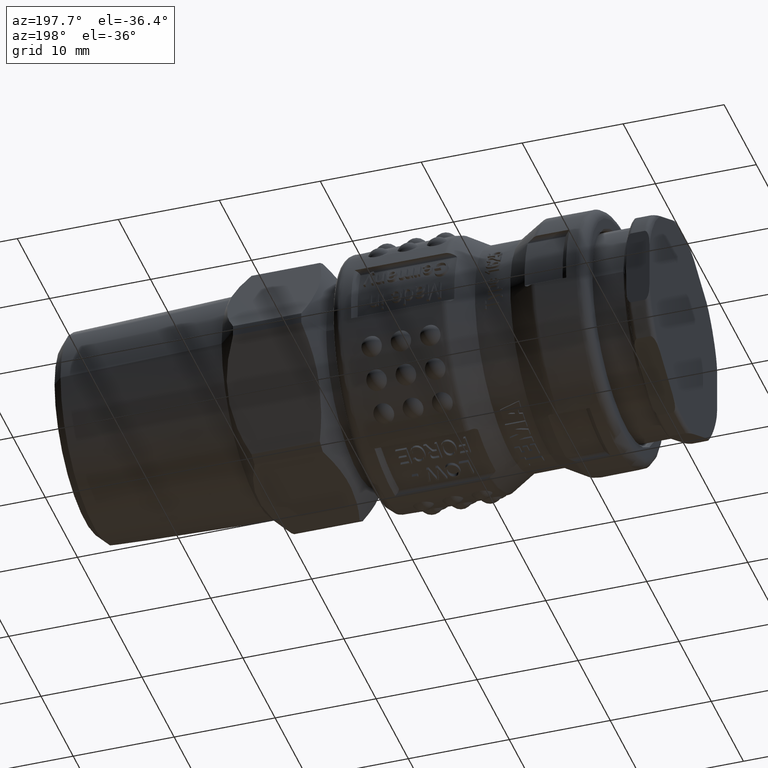
[diagram: clean part render]
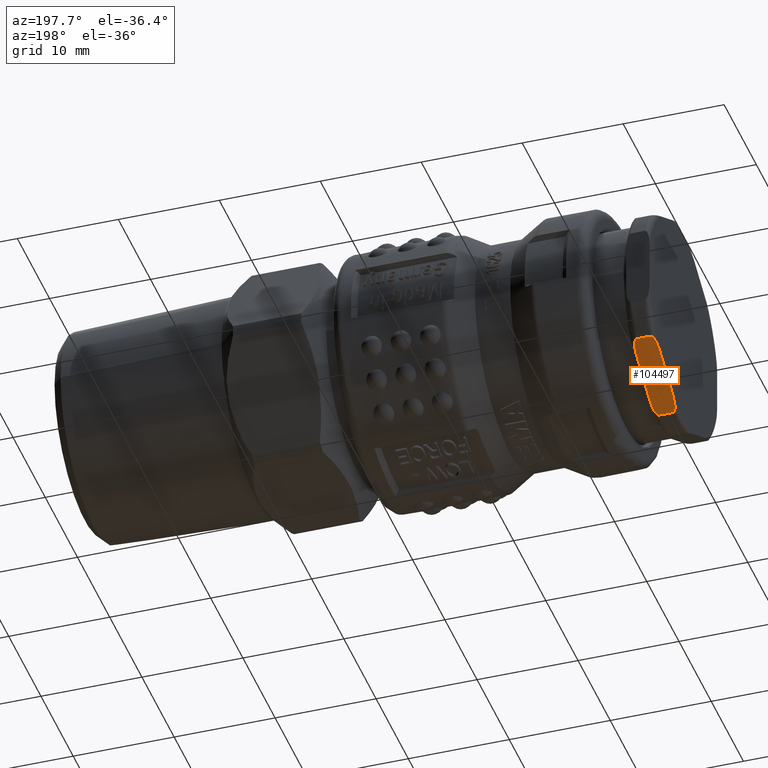
[diagram: same view with one face highlighted and labeled with its STEP entity id]
A machine part, auxiliary view. The second image highlights one B-rep face of the part: STEP entity #104497.
In plain terms, the highlighted planar face has unit normal (0, -0.5, 0.866).
Its self-contained STEP definition (entity closure, byte-faithful):
#104366=CARTESIAN_POINT('',(2.537318455405742,5.249999999999994,-9.093266739736611));
#104367=DIRECTION('',(0.0,-0.499999999999999,0.866025403784439));
#104368=DIRECTION('',(0.0,-0.866025403784439,-0.499999999999999));
#104369=AXIS2_PLACEMENT_3D('',#104366,#104367,#104368);
#104370=PLANE('',#104369);
#104371=CARTESIAN_POINT('',(0.0,7.246089927833896,-7.940823682575009));
#104372=VERTEX_POINT('',#104371);
#104373=CARTESIAN_POINT('',(0.0,3.253910072166088,-10.245709796898215));
#104374=VERTEX_POINT('',#104373);
#104375=CARTESIAN_POINT('',(-5.551115E-016,7.246089927833896,-7.940823682575011));
#104376=DIRECTION('',(0.0,-0.866025403784439,-0.499999999999999));
#104377=VECTOR('',#104376,4.609772228646418);
#104378=LINE('',#104375,#104377);
#104379=EDGE_CURVE('',#104372,#104374,#104378,.T.);
#104380=ORIENTED_EDGE('',*,*,#104379,.F.);
#104381=CARTESIAN_POINT('',(0.499999999999998,8.747767144908295,-7.073829937061179));
#104382=VERTEX_POINT('',#104381);
#104383=CARTESIAN_POINT('',(0.500000000000002,8.747767144908295,-7.073829937061179));
#104384=CARTESIAN_POINT('',(0.481121643181689,8.747767144908295,-7.073829937061179));
#104385=CARTESIAN_POINT('',(0.458793051211935,8.744453652771821,-7.075742982638130));
#104386=CARTESIAN_POINT('',(0.419627389315129,8.733179611163584,-7.082252053595502));
#104387=CARTESIAN_POINT('',(0.395950711829969,8.722171444050003,-7.088607621841811));
#104388=CARTESIAN_POINT('',(0.316967568714504,8.673656333029786,-7.116617834249097));
#104389=CARTESIAN_POINT('',(0.265911333462271,8.610178992294518,-7.153266494010046));
#104390=CARTESIAN_POINT('',(0.115388660381504,8.366283622324060,-7.294079551516592));
#104391=CARTESIAN_POINT('',(0.069277545910452,8.144360706525648,-7.422206806692152));
#104392=CARTESIAN_POINT('',(0.007777012194475,7.690678814278845,-7.684140169307302));
#104393=CARTESIAN_POINT('',(-7.999750E-016,7.458170150810655,-7.818379108749584));
#104394=CARTESIAN_POINT('',(-8.543513E-016,7.246089927833888,-7.940823682575014));
#104395=B_SPLINE_CURVE_WITH_KNOTS('',3,(#104383,#104384,#104385,#104386,#104387,#104388,#104389,#104390,#104391,#104392,#104393,#104394),.UNSPECIFIED.,.F.,.U.,(4,2,2,2,2,4),(-0.397866170477986,-0.392202663432492,-0.385484413810797,-0.363152771171895,-0.289686026876636,-0.216219282581377),.UNSPECIFIED.);
#104396=EDGE_CURVE('',#104382,#104372,#104395,.T.);
#104397=ORIENTED_EDGE('',*,*,#104396,.F.);
#104398=CARTESIAN_POINT('',(1.799999999999997,8.747767144908295,-7.073829937061179));
#104399=VERTEX_POINT('',#104398);
#104400=CARTESIAN_POINT('',(1.799999999999997,8.747767144908295,-7.073829937061179));
#104401=DIRECTION('',(-1.0,0.0,0.0));
#104402=VECTOR('',#104401,1.299999999999999);
#104403=LINE('',#104400,#104402);
#104404=EDGE_CURVE('',#104399,#104382,#104403,.T.);
#104405=ORIENTED_EDGE('',*,*,#104404,.F.);
#104406=CARTESIAN_POINT('',(2.299999999999995,7.246089927833905,-7.940823682575005));
#104407=VERTEX_POINT('',#104406);
#104408=CARTESIAN_POINT('',(2.299999999999997,7.246089927833897,-7.940823682575009));
#104409=CARTESIAN_POINT('',(2.299999999999997,7.458170150810663,-7.818379108749578));
#104410=CARTESIAN_POINT('',(2.292222987805521,7.690678814278853,-7.684140169307298));
#104411=CARTESIAN_POINT('',(2.230722454089543,8.144360706525653,-7.422206806692151));
#104412=CARTESIAN_POINT('',(2.184611339618494,8.366283622324062,-7.294079551516592));
#104413=CARTESIAN_POINT('',(2.034088666537726,8.610178992294518,-7.153266494010046));
#104414=CARTESIAN_POINT('',(1.983032431285494,8.673656333029786,-7.116617834249097));
#104415=CARTESIAN_POINT('',(1.904049288170030,8.722171444050002,-7.088607621841811));
#104416=CARTESIAN_POINT('',(1.880372610684868,8.733179611163580,-7.082252053595504));
#104417=CARTESIAN_POINT('',(1.841206948788063,8.744453652771817,-7.075742982638133));
#104418=CARTESIAN_POINT('',(1.818878356818310,8.747767144908295,-7.073829937061179));
#104419=CARTESIAN_POINT('',(1.799999999999997,8.747767144908295,-7.073829937061179));
#104420=B_SPLINE_CURVE_WITH_KNOTS('',3,(#104408,#104409,#104410,#104411,#104412,#104413,#104414,#104415,#104416,#104417,#104418,#104419),.UNSPECIFIED.,.F.,.U.,(4,2,2,2,2,4),(1.011951623537349,1.085418367832607,1.158885112127866,1.181216754766768,1.187935004388462,1.193598511433956),.UNSPECIFIED.);
#104421=EDGE_CURVE('',#104407,#104399,#104420,.T.);
#104422=ORIENTED_EDGE('',*,*,#104421,.F.);
#104423=CARTESIAN_POINT('',(2.300000000000000,6.138467782195813,-8.580309626519547));
#104424=VERTEX_POINT('',#104423);
#104425=CARTESIAN_POINT('',(2.299999999999998,6.138467782195813,-8.580309626519547));
#104426=DIRECTION('',(0.0,0.866025403784439,0.499999999999999));
#104427=VECTOR('',#104426,1.278971887889087);
#104428=LINE('',#104425,#104427);
#104429=EDGE_CURVE('',#104424,#104407,#104428,.T.);
#104430=ORIENTED_EDGE('',*,*,#104429,.F.);
#104431=CARTESIAN_POINT('',(2.300000000000000,4.361532217804172,-9.606223852953677));
#104432=VERTEX_POINT('',#104431);
#104433=CARTESIAN_POINT('',(2.299999999999998,4.361532217804154,-9.606223852953688));
#104434=CARTESIAN_POINT('',(2.299999999999998,4.443163184411790,-9.559094192408560));
#104435=CARTESIAN_POINT('',(2.300378094133238,4.541119797077845,-9.502538915716910));
#104436=CARTESIAN_POINT('',(2.301762414152041,4.818765312358481,-9.342240202730341));
#104437=CARTESIAN_POINT('',(2.303137303340309,5.053982863045070,-9.206437286523318));
#104438=CARTESIAN_POINT('',(2.303137303340309,5.249999999999994,-9.093266739736613));
#104439=CARTESIAN_POINT('',(2.303137303340310,5.446017136954917,-8.980096192949908));
#104440=CARTESIAN_POINT('',(2.301762414152041,5.681234687641505,-8.844293276742882));
#104441=CARTESIAN_POINT('',(2.300378094133237,5.958880202922140,-8.683994563756315));
#104442=CARTESIAN_POINT('',(2.299999999999998,6.056836815588195,-8.627439287064663));
#104443=CARTESIAN_POINT('',(2.299999999999998,6.138467782195831,-8.580309626519536));
#104444=B_SPLINE_CURVE_WITH_KNOTS('',3,(#104433,#104434,#104435,#104436,#104437,#104438,#104439,#104440,#104441,#104442,#104443),.UNSPECIFIED.,.F.,.U.,(4,2,3,2,4),(-0.096180124399100,-0.067902328072023,0.0,0.067902328072023,0.096180124399100),.UNSPECIFIED.);
#104445=EDGE_CURVE('',#104432,#104424,#104444,.T.);
#104446=ORIENTED_EDGE('',*,*,#104445,.F.);
#104447=CARTESIAN_POINT('',(2.299999999999995,3.253910072166080,-10.245709796898218));
#104448=VERTEX_POINT('',#104447);
#104449=CARTESIAN_POINT('',(2.299999999999998,3.253910072166080,-10.245709796898220));
#104450=DIRECTION('',(0.0,0.866025403784439,0.499999999999999));
#104451=VECTOR('',#104450,1.278971887889087);
#104452=LINE('',#104449,#104451);
#104453=EDGE_CURVE('',#104448,#104432,#104452,.T.);
#104454=ORIENTED_EDGE('',*,*,#104453,.F.);
#104455=CARTESIAN_POINT('',(1.799999999999997,1.752232855091690,-11.112703542412046));
#104456=VERTEX_POINT('',#104455);
#104457=CARTESIAN_POINT('',(1.799999999999997,1.752232855091690,-11.112703542412046));
#104458=CARTESIAN_POINT('',(1.818878356818310,1.752232855091690,-11.112703542412046));
#104459=CARTESIAN_POINT('',(1.841206948788063,1.755546347228169,-11.110790496835090));
#104460=CARTESIAN_POINT('',(1.880372610684868,1.766820388836406,-11.104281425877719));
#104461=CARTESIAN_POINT('',(1.904049288170030,1.777828555949982,-11.097925857631413));
#104462=CARTESIAN_POINT('',(1.983032431285494,1.826343666970198,-11.069915645224127));
#104463=CARTESIAN_POINT('',(2.034088666537726,1.889821007705467,-11.033266985463177));
#104464=CARTESIAN_POINT('',(2.184611339618494,2.133716377675923,-10.892453927956630));
#104465=CARTESIAN_POINT('',(2.230722454089543,2.355639293474333,-10.764326672781074));
#104466=CARTESIAN_POINT('',(2.292222987805521,2.809321185721132,-10.502393310165928));
#104467=CARTESIAN_POINT('',(2.299999999999997,3.041829849189324,-10.368154370723646));
#104468=CARTESIAN_POINT('',(2.299999999999997,3.253910072166089,-10.245709796898215));
#104469=B_SPLINE_CURVE_WITH_KNOTS('',3,(#104457,#104458,#104459,#104460,#104461,#104462,#104463,#104464,#104465,#104466,#104467,#104468),.UNSPECIFIED.,.F.,.U.,(4,2,2,2,2,4),(0.397866170477985,0.403529677523479,0.410247927145173,0.432579569784076,0.506046314079334,0.579513058374593),.UNSPECIFIED.);
#104470=EDGE_CURVE('',#104456,#104448,#104469,.T.);
#104471=ORIENTED_EDGE('',*,*,#104470,.F.);
#104472=CARTESIAN_POINT('',(0.499999999999998,1.752232855091690,-11.112703542412046));
#104473=VERTEX_POINT('',#104472);
#104474=CARTESIAN_POINT('',(0.499999999999998,1.752232855091690,-11.112703542412046));
#104475=DIRECTION('',(1.0,0.0,0.0));
#104476=VECTOR('',#104475,1.299999999999999);
#104477=LINE('',#104474,#104476);
#104478=EDGE_CURVE('',#104473,#104456,#104477,.T.);
#104479=ORIENTED_EDGE('',*,*,#104478,.F.);
#104480=CARTESIAN_POINT('',(-1.073902E-015,3.253910072166097,-10.245709796898211));
#104481=CARTESIAN_POINT('',(-1.069654E-015,3.041829849189330,-10.368154370723641));
#104482=CARTESIAN_POINT('',(0.007777012194476,2.809321185721138,-10.502393310165923));
#104483=CARTESIAN_POINT('',(0.069277545910455,2.355639293474336,-10.764326672781070));
#104484=CARTESIAN_POINT('',(0.115388660381503,2.133716377675925,-10.892453927956630));
#104485=CARTESIAN_POINT('',(0.265911333462271,1.889821007705467,-11.033266985463177));
#104486=CARTESIAN_POINT('',(0.316967568714504,1.826343666970199,-11.069915645224127));
#104487=CARTESIAN_POINT('',(0.395950711829969,1.777828555949982,-11.097925857631413));
#104488=CARTESIAN_POINT('',(0.419627389315129,1.766820388836401,-11.104281425877723));
#104489=CARTESIAN_POINT('',(0.458793051211935,1.755546347228164,-11.110790496835092));
#104490=CARTESIAN_POINT('',(0.481121643181689,1.752232855091690,-11.112703542412046));
#104491=CARTESIAN_POINT('',(0.500000000000002,1.752232855091690,-11.112703542412046));
#104492=B_SPLINE_CURVE_WITH_KNOTS('',3,(#104480,#104481,#104482,#104483,#104484,#104485,#104486,#104487,#104488,#104489,#104490,#104491),.UNSPECIFIED.,.F.,.U.,(4,2,2,2,2,4),(0.216219282581377,0.289686026876636,0.363152771171895,0.385484413810798,0.392202663432492,0.397866170477986),.UNSPECIFIED.);
#104493=EDGE_CURVE('',#104374,#104473,#104492,.T.);
#104494=ORIENTED_EDGE('',*,*,#104493,.F.);
#104495=EDGE_LOOP('',(#104380,#104397,#104405,#104422,#104430,#104446,#104454,#104471,#104479,#104494));
#104496=FACE_OUTER_BOUND('',#104495,.T.);
#104497=ADVANCED_FACE('',(#104496),#104370,.F.);